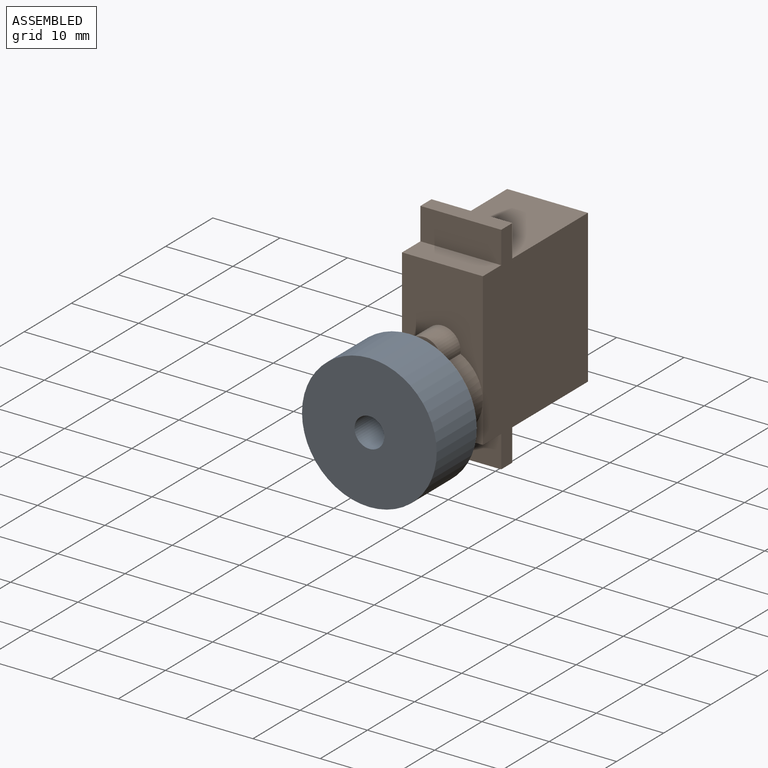
[diagram: assembled view]
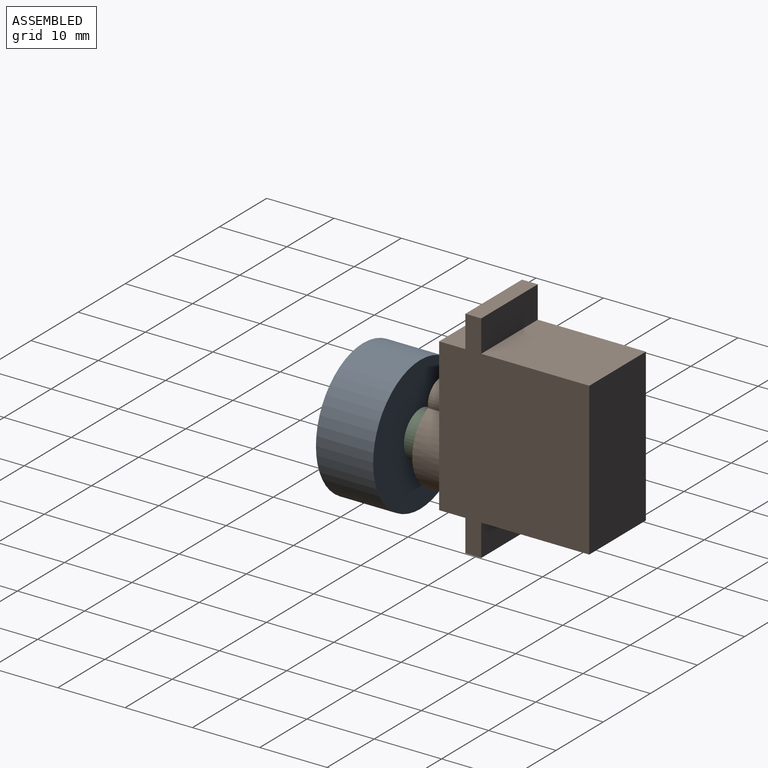
[diagram: assembled view, second angle]
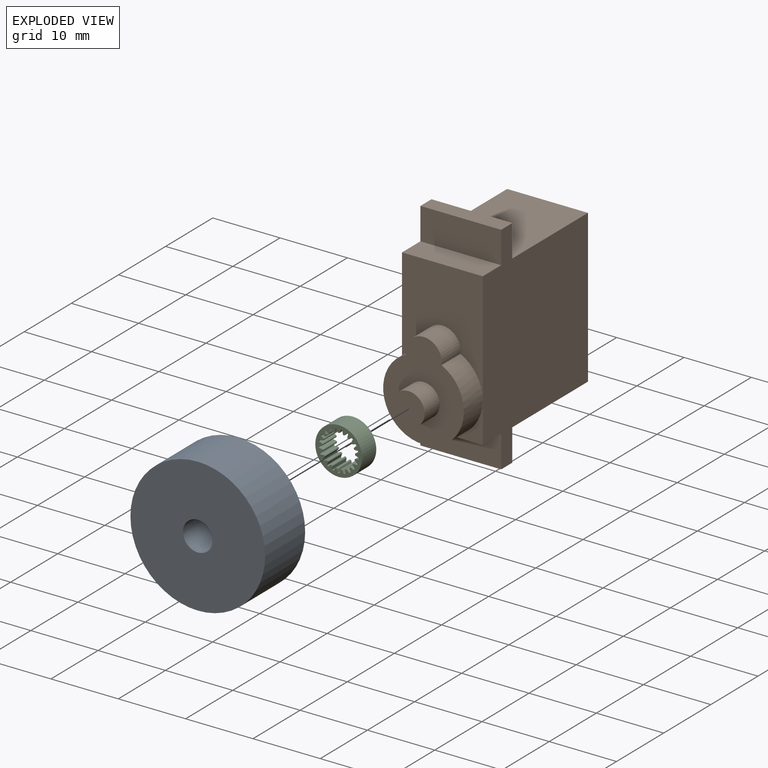
[diagram: exploded view]
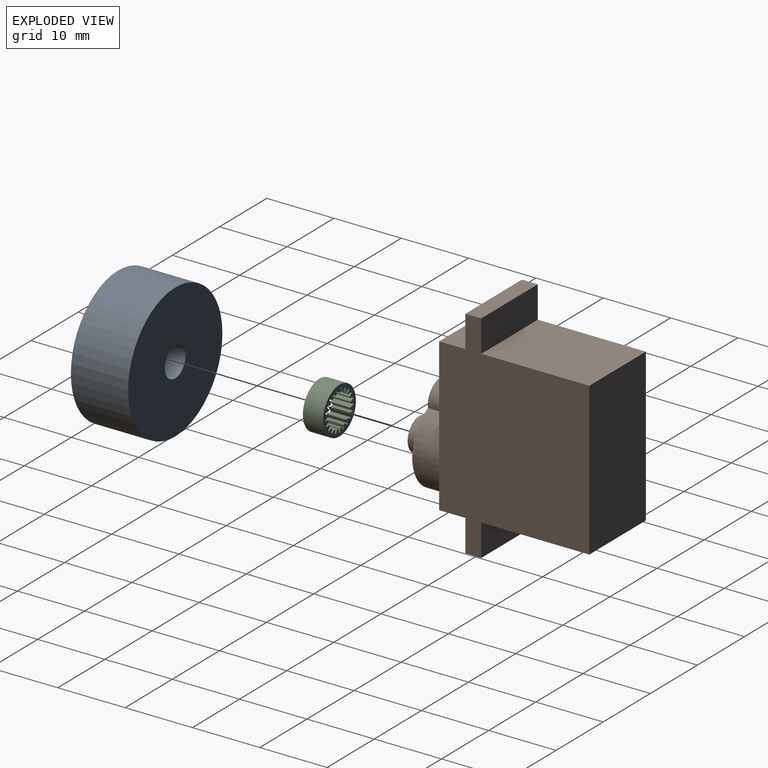
[diagram: exploded view, second angle]
ASSEMBLY  parts=3 mates=2
PART A: 4 faces, bbox 20x8.5x20 mm
  f0: cylinder r=2.2mm len=8.5mm, axis (0,1,0), area 117.5mm2, adj f2,f3
  f1: cylinder r=10mm len=20mm, axis (0,1,0), area 534.1mm2, adj f2,f3
  f2: plane 20x20mm, normal (0,-1,0), area 299mm2, adj f0,f1
  f3: plane 20x20mm, normal (0,1,0), area 299mm2, adj f0,f1
PART B: 21 faces, bbox 12x29.5x32.2 mm
  f0: plane 16.66x12mm, normal (0,-1,0), area 132.1mm2, adj f4,f5,f7,f16,f17
  f1: plane 6x6mm, normal (0,-1,0), area 7.7mm2, adj f5,f6,f16
  f2: plane 16.05x12mm, normal (0,0,1), area 192.6mm2, adj f5,f7,f9,f14
  f3: plane 16.05x12mm, normal (0,0,-1), area 192.6mm2, adj f5,f7,f9,f11
  f4: plane 12x3.9mm, normal (0,0,1), area 46.8mm2, adj f0,f5,f7,f15
  f5: plane 32.16x22.3mm, normal (-1,0,0), area 527.6mm2, adj f0,f1,f2,f3,f4,f6,f9,f10
  f6: plane 12x3.9mm, normal (0,0,-1), area 46.8mm2, adj f1,f5,f7,f8,f12
  f7: plane 32.16x22.3mm, normal (1,0,0), area 527.6mm2, adj f0,f2,f3,f4,f6,f8,f9,f10
  f8: plane 6x6mm, normal (0,-1,0), area 7.7mm2, adj f6,f7,f16
  f9: plane 22.66x12mm, normal (0,1,0), area 271.9mm2, adj f2,f3,f5,f7
  f10: plane 12x2.35mm, normal (0,0,-1), area 28.2mm2, adj f5,f7,f11,f12
  f11: plane 12x4.75mm, normal (0,1,0), area 57mm2, adj f3,f5,f7,f10
  f12: plane 12x4.75mm, normal (0,-1,0), area 57mm2, adj f5,f6,f7,f10
  f13: plane 12x2.35mm, normal (0,0,1), area 28.2mm2, adj f5,f7,f14,f15
  f14: plane 12x4.75mm, normal (0,1,0), area 57mm2, adj f2,f5,f7,f13
  f15: plane 12x4.75mm, normal (0,-1,0), area 57mm2, adj f4,f5,f7,f13
  f16: cylinder r=6mm len=12mm, axis (0,1,0), area 128.6mm2, adj f0,f1,f8,f17,f18
  f17: cylinder r=2.7mm len=5.4mm, axis (0,1,0), area 37mm2, adj f0,f16,f18
  f18: plane 14.45x12mm, normal (0,-1,0), area 106.2mm2, adj f16,f17,f19
  f19: cylinder r=2.4mm len=4.8mm, axis (0,1,0), area 48.3mm2, adj f18,f20
  f20: plane 4.8x4.8mm, normal (0,-1,0), area 18.1mm2, adj f19
PART C: 129 faces, bbox 7x3x7 mm
  f0: cylinder r=2.98mm len=3mm, axis (0,1,0), area 0.2mm2, adj f22,f23,f28,f125
  f1: cylinder r=2.98mm len=3mm, axis (0,1,0), area 0.2mm2, adj f22,f23,f120,f126
  f2: cylinder r=2.98mm len=3mm, axis (0,1,0), area 0.2mm2, adj f22,f23,f115,f121
  f3: cylinder r=2.98mm len=3mm, axis (0,1,0), area 0.2mm2, adj f22,f23,f110,f116
  f4: cylinder r=2.98mm len=3mm, axis (0,1,0), area 0.2mm2, adj f22,f23,f105,f111
  f5: cylinder r=2.98mm len=3mm, axis (0,1,0), area 0.2mm2, adj f22,f23,f100,f106
  f6: cylinder r=2.98mm len=3mm, axis (0,1,0), area 0.2mm2, adj f22,f23,f95,f101
  f7: cylinder r=2.98mm len=3mm, axis (0,1,0), area 0.2mm2, adj f22,f23,f90,f96
  f8: cylinder r=2.98mm len=3mm, axis (0,1,0), area 0.2mm2, adj f22,f23,f85,f91
  f9: cylinder r=2.98mm len=3mm, axis (0,1,0), area 0.2mm2, adj f22,f23,f80,f86
  f10: cylinder r=2.98mm len=3mm, axis (0,1,0), area 0.2mm2, adj f22,f23,f75,f81
  f11: cylinder r=2.98mm len=3mm, axis (0,1,0), area 0.2mm2, adj f22,f23,f70,f76
  f12: cylinder r=2.98mm len=3mm, axis (0,1,0), area 0.2mm2, adj f22,f23,f65,f71
  f13: cylinder r=2.98mm len=3mm, axis (0,1,0), area 0.2mm2, adj f22,f23,f60,f66
  f14: cylinder r=2.98mm len=3mm, axis (0,1,0), area 0.2mm2, adj f22,f23,f55,f61
  f15: cylinder r=2.98mm len=3mm, axis (0,1,0), area 0.2mm2, adj f22,f23,f50,f56
  f16: cylinder r=2.98mm len=3mm, axis (0,1,0), area 0.2mm2, adj f22,f23,f45,f51
  f17: cylinder r=2.98mm len=3mm, axis (0,1,0), area 0.2mm2, adj f22,f23,f40,f46
  f18: cylinder r=2.98mm len=3mm, axis (0,1,0), area 0.2mm2, adj f22,f23,f35,f41
  f19: cylinder r=2.98mm len=3mm, axis (0,1,0), area 0.2mm2, adj f22,f23,f30,f36
  f20: cylinder r=2.98mm len=3mm, axis (0,1,0), area 0.2mm2, adj f22,f23,f27,f31
  f21: cylinder r=3.48mm len=6.96mm, axis (0,1,0), area 65.6mm2, adj f22,f23
  f22: plane 6.96x6.96mm, normal (0,-1,0), area 15.4mm2, adj f0,f1,f2,f3,f4,f5,f6,f7
  f23: plane 6.96x6.96mm, normal (0,1,0), area 15.4mm2, adj f0,f1,f2,f3,f4,f5,f6,f7
  f24: plane 3x0.42mm, normal (-0.93,0,-0.37), area 1.4mm2, adj f22,f23,f25,f28
  f25: cylinder r=0.18mm len=3mm, axis (0,1,0), area 1mm2, adj f22,f23,f24,f26
  f26: plane 3x0.42mm, normal (0.93,0,-0.37), area 1.4mm2, adj f22,f23,f25,f27
  f27: cylinder r=0.1mm len=3mm, axis (0,1,0), area 0.3mm2, adj f20,f22,f23,f26
  f28: cylinder r=0.1mm len=3mm, axis (0,1,0), area 0.3mm2, adj f0,f22,f23,f24
  f29: plane 3x0.35mm, normal (0.78,0,-0.63), area 1.4mm2, adj f22,f23,f30,f32
  f30: cylinder r=0.1mm len=3mm, axis (0,1,0), area 0.3mm2, adj f19,f22,f23,f29
  f31: cylinder r=0.1mm len=3mm, axis (0,1,0), area 0.3mm2, adj f20,f22,f23,f33
  f32: cylinder r=0.18mm len=3mm, axis (0,1,0), area 1mm2, adj f22,f23,f29,f33
  f33: plane 3x0.45mm, normal (-1,0,-0.08), area 1.4mm2, adj f22,f23,f31,f32
  f34: plane 3x0.38mm, normal (0.56,0,-0.83), area 1.4mm2, adj f22,f23,f35,f37
  f35: cylinder r=0.1mm len=3mm, axis (0,1,0), area 0.3mm2, adj f18,f22,f23,f34
  f36: cylinder r=0.1mm len=3mm, axis (0,1,0), area 0.3mm2, adj f19,f22,f23,f38
  f37: cylinder r=0.18mm len=3mm, axis (0,1,0), area 1mm2, adj f22,f23,f34,f38
  f38: plane 3x0.45mm, normal (-0.98,0,0.21), area 1.4mm2, adj f22,f23,f36,f37
  f39: plane 3x0.44mm, normal (0.29,0,-0.96), area 1.4mm2, adj f22,f23,f40,f42
  f40: cylinder r=0.1mm len=3mm, axis (0,1,0), area 0.3mm2, adj f17,f22,f23,f39
  f41: cylinder r=0.1mm len=3mm, axis (0,1,0), area 0.3mm2, adj f18,f22,f23,f43
  f42: cylinder r=0.18mm len=3mm, axis (0,1,0), area 1mm2, adj f22,f23,f39,f43
  f43: plane 3x0.4mm, normal (-0.87,0,0.49), area 1.4mm2, adj f22,f23,f41,f42
  f44: plane 3x0.46mm, normal (-0.01,0,-1), area 1.4mm2, adj f22,f23,f45,f47
  f45: cylinder r=0.1mm len=3mm, axis (0,1,0), area 0.3mm2, adj f16,f22,f23,f44
  f46: cylinder r=0.1mm len=3mm, axis (0,1,0), area 0.3mm2, adj f17,f22,f23,f48
  f47: cylinder r=0.18mm len=3mm, axis (0,1,0), area 1mm2, adj f22,f23,f44,f48
  f48: plane 3x0.33mm, normal (-0.69,0,0.73), area 1.4mm2, adj f22,f23,f46,f47
  f49: plane 3x0.43mm, normal (-0.3,0,-0.95), area 1.4mm2, adj f22,f23,f50,f52
  f50: cylinder r=0.1mm len=3mm, axis (0,1,0), area 0.3mm2, adj f15,f22,f23,f49
  f51: cylinder r=0.1mm len=3mm, axis (0,1,0), area 0.3mm2, adj f16,f22,f23,f53
  f52: cylinder r=0.18mm len=3mm, axis (0,1,0), area 1mm2, adj f22,f23,f49,f53
  f53: plane 3x0.41mm, normal (-0.44,0,0.9), area 1.4mm2, adj f22,f23,f51,f52
  f54: plane 3x0.37mm, normal (-0.57,0,-0.82), area 1.4mm2, adj f22,f23,f55,f57
  f55: cylinder r=0.1mm len=3mm, axis (0,1,0), area 0.3mm2, adj f14,f22,f23,f54
  f56: cylinder r=0.1mm len=3mm, axis (0,1,0), area 0.3mm2, adj f15,f22,f23,f58
  f57: cylinder r=0.18mm len=3mm, axis (0,1,0), area 1mm2, adj f22,f23,f54,f58
  f58: plane 3x0.45mm, normal (-0.16,0,0.99), area 1.4mm2, adj f22,f23,f56,f57
  f59: plane 3x0.36mm, normal (-0.79,0,-0.62), area 1.4mm2, adj f22,f23,f60,f62
  f60: cylinder r=0.1mm len=3mm, axis (0,1,0), area 0.3mm2, adj f13,f22,f23,f59
  f61: cylinder r=0.1mm len=3mm, axis (0,1,0), area 0.3mm2, adj f14,f22,f23,f63
  f62: cylinder r=0.18mm len=3mm, axis (0,1,0), area 1mm2, adj f22,f23,f59,f63
  f63: plane 3x0.45mm, normal (0.14,0,0.99), area 1.4mm2, adj f22,f23,f61,f62
  f64: plane 3x0.43mm, normal (-0.93,0,-0.36), area 1.4mm2, adj f22,f23,f65,f67
  f65: cylinder r=0.1mm len=3mm, axis (0,1,0), area 0.3mm2, adj f12,f22,f23,f64
  f66: cylinder r=0.1mm len=3mm, axis (0,1,0), area 0.3mm2, adj f13,f22,f23,f68
  f67: cylinder r=0.18mm len=3mm, axis (0,1,0), area 1mm2, adj f22,f23,f64,f68
  f68: plane 3x0.41mm, normal (0.43,0,0.9), area 1.4mm2, adj f22,f23,f66,f67
  f69: plane 3x0.45mm, normal (-1,0,-0.07), area 1.4mm2, adj f22,f23,f70,f72
  f70: cylinder r=0.1mm len=3mm, axis (0,1,0), area 0.3mm2, adj f11,f22,f23,f69
  f71: cylinder r=0.1mm len=3mm, axis (0,1,0), area 0.3mm2, adj f12,f22,f23,f73
  f72: cylinder r=0.18mm len=3mm, axis (0,1,0), area 1mm2, adj f22,f23,f69,f73
  f73: plane 3x0.34mm, normal (0.67,0,0.74), area 1.4mm2, adj f22,f23,f71,f72
  f74: plane 3x0.44mm, normal (-0.97,0,0.23), area 1.4mm2, adj f22,f23,f75,f77
  f75: cylinder r=0.1mm len=3mm, axis (0,1,0), area 0.3mm2, adj f10,f22,f23,f74
  f76: cylinder r=0.1mm len=3mm, axis (0,1,0), area 0.3mm2, adj f11,f22,f23,f78
  f77: cylinder r=0.18mm len=3mm, axis (0,1,0), area 1mm2, adj f22,f23,f74,f78
  f78: plane 3x0.39mm, normal (0.86,0,0.51), area 1.4mm2, adj f22,f23,f76,f77
  f79: plane 3x0.39mm, normal (-0.86,0,0.51), area 1.4mm2, adj f22,f23,f80,f82
  f80: cylinder r=0.1mm len=3mm, axis (0,1,0), area 0.3mm2, adj f9,f22,f23,f79
  f81: cylinder r=0.1mm len=3mm, axis (0,1,0), area 0.3mm2, adj f10,f22,f23,f83
  f82: cylinder r=0.18mm len=3mm, axis (0,1,0), area 1mm2, adj f22,f23,f79,f83
  f83: plane 3x0.44mm, normal (0.97,0,0.23), area 1.4mm2, adj f22,f23,f81,f82
  f84: plane 3x0.34mm, normal (-0.67,0,0.74), area 1.4mm2, adj f22,f23,f85,f87
  f85: cylinder r=0.1mm len=3mm, axis (0,1,0), area 0.3mm2, adj f8,f22,f23,f84
  f86: cylinder r=0.1mm len=3mm, axis (0,1,0), area 0.3mm2, adj f9,f22,f23,f88
  f87: cylinder r=0.18mm len=3mm, axis (0,1,0), area 1mm2, adj f22,f23,f84,f88
  f88: plane 3x0.45mm, normal (1,0,-0.07), area 1.4mm2, adj f22,f23,f86,f87
  f89: plane 3x0.41mm, normal (-0.43,0,0.9), area 1.4mm2, adj f22,f23,f90,f92
  f90: cylinder r=0.1mm len=3mm, axis (0,1,0), area 0.3mm2, adj f7,f22,f23,f89
  f91: cylinder r=0.1mm len=3mm, axis (0,1,0), area 0.3mm2, adj f8,f22,f23,f93
  f92: cylinder r=0.18mm len=3mm, axis (0,1,0), area 1mm2, adj f22,f23,f89,f93
  f93: plane 3x0.43mm, normal (0.93,0,-0.36), area 1.4mm2, adj f22,f23,f91,f92
  f94: plane 3x0.45mm, normal (-0.14,0,0.99), area 1.4mm2, adj f22,f23,f95,f97
  f95: cylinder r=0.1mm len=3mm, axis (0,1,0), area 0.3mm2, adj f6,f22,f23,f94
  f96: cylinder r=0.1mm len=3mm, axis (0,1,0), area 0.3mm2, adj f7,f22,f23,f98
  f97: cylinder r=0.18mm len=3mm, axis (0,1,0), area 1mm2, adj f22,f23,f94,f98
  f98: plane 3x0.36mm, normal (0.79,0,-0.62), area 1.4mm2, adj f22,f23,f96,f97
  f99: plane 3x0.45mm, normal (0.16,0,0.99), area 1.4mm2, adj f22,f23,f100,f102
  f100: cylinder r=0.1mm len=3mm, axis (0,1,0), area 0.3mm2, adj f5,f22,f23,f99
  f101: cylinder r=0.1mm len=3mm, axis (0,1,0), area 0.3mm2, adj f6,f22,f23,f103
  f102: cylinder r=0.18mm len=3mm, axis (0,1,0), area 1mm2, adj f22,f23,f99,f103
  f103: plane 3x0.37mm, normal (0.57,0,-0.82), area 1.4mm2, adj f22,f23,f101,f102
  f104: plane 3x0.41mm, normal (0.44,0,0.9), area 1.4mm2, adj f22,f23,f105,f107
  f105: cylinder r=0.1mm len=3mm, axis (0,1,0), area 0.3mm2, adj f4,f22,f23,f104
  f106: cylinder r=0.1mm len=3mm, axis (0,1,0), area 0.3mm2, adj f5,f22,f23,f108
  f107: cylinder r=0.18mm len=3mm, axis (0,1,0), area 1mm2, adj f22,f23,f104,f108
  f108: plane 3x0.43mm, normal (0.3,0,-0.95), area 1.4mm2, adj f22,f23,f106,f107
  f109: plane 3x0.33mm, normal (0.69,0,0.73), area 1.4mm2, adj f22,f23,f110,f112
  f110: cylinder r=0.1mm len=3mm, axis (0,1,0), area 0.3mm2, adj f3,f22,f23,f109
  f111: cylinder r=0.1mm len=3mm, axis (0,1,0), area 0.3mm2, adj f4,f22,f23,f113
  f112: cylinder r=0.18mm len=3mm, axis (0,1,0), area 1mm2, adj f22,f23,f109,f113
  f113: plane 3x0.46mm, normal (0.01,0,-1), area 1.4mm2, adj f22,f23,f111,f112
  f114: plane 3x0.4mm, normal (0.87,0,0.49), area 1.4mm2, adj f22,f23,f115,f117
  f115: cylinder r=0.1mm len=3mm, axis (0,1,0), area 0.3mm2, adj f2,f22,f23,f114
  f116: cylinder r=0.1mm len=3mm, axis (0,1,0), area 0.3mm2, adj f3,f22,f23,f118
  f117: cylinder r=0.18mm len=3mm, axis (0,1,0), area 1mm2, adj f22,f23,f114,f118
  f118: plane 3x0.44mm, normal (-0.29,0,-0.96), area 1.4mm2, adj f22,f23,f116,f117
  f119: plane 3x0.45mm, normal (0.98,0,0.21), area 1.4mm2, adj f22,f23,f120,f122
  f120: cylinder r=0.1mm len=3mm, axis (0,1,0), area 0.3mm2, adj f1,f22,f23,f119
  f121: cylinder r=0.1mm len=3mm, axis (0,1,0), area 0.3mm2, adj f2,f22,f23,f123
  f122: cylinder r=0.18mm len=3mm, axis (0,1,0), area 1mm2, adj f22,f23,f119,f123
  f123: plane 3x0.38mm, normal (-0.56,0,-0.83), area 1.4mm2, adj f22,f23,f121,f122
  f124: plane 3x0.45mm, normal (1,0,-0.08), area 1.4mm2, adj f22,f23,f125,f127
  f125: cylinder r=0.1mm len=3mm, axis (0,1,0), area 0.3mm2, adj f0,f22,f23,f124
  f126: cylinder r=0.1mm len=3mm, axis (0,1,0), area 0.3mm2, adj f1,f22,f23,f128
  f127: cylinder r=0.18mm len=3mm, axis (0,1,0), area 1mm2, adj f22,f23,f124,f128
  f128: plane 3x0.35mm, normal (-0.78,0,-0.63), area 1.4mm2, adj f22,f23,f126,f127
PLACE A rot(axis=(1,0,0),180deg) t=(35.26,-19.98,-31.26)mm
PLACE B t=(33.05,17.82,-30.52)mm
PLACE C t=(35.26,-8.48,-41.26)mm
MATE fastened C.f0 <-> B.f16  axis (0,1,0) through (35.26,-8.48,-31.26)mm
MATE fastened C.f0 <-> A.f0  axis (0,-1,0) through (35.26,-11.48,-31.26)mm
